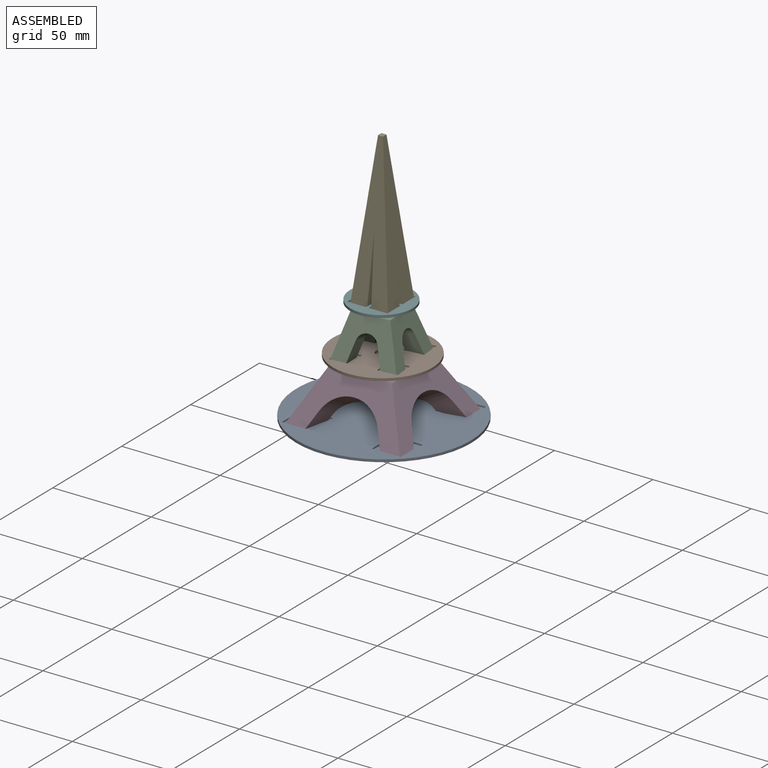
[diagram: assembled view]
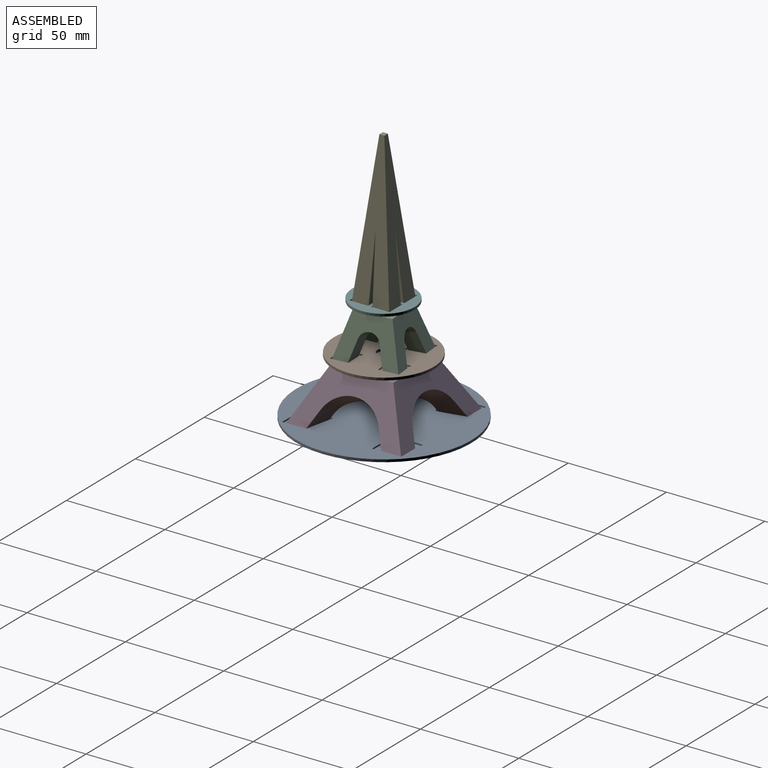
[diagram: assembled view, second angle]
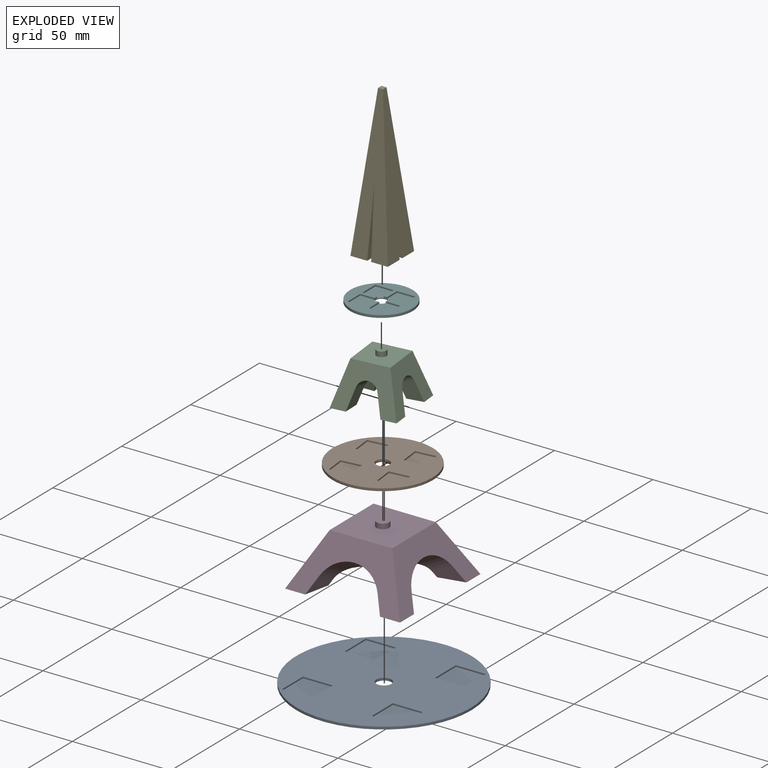
[diagram: exploded view]
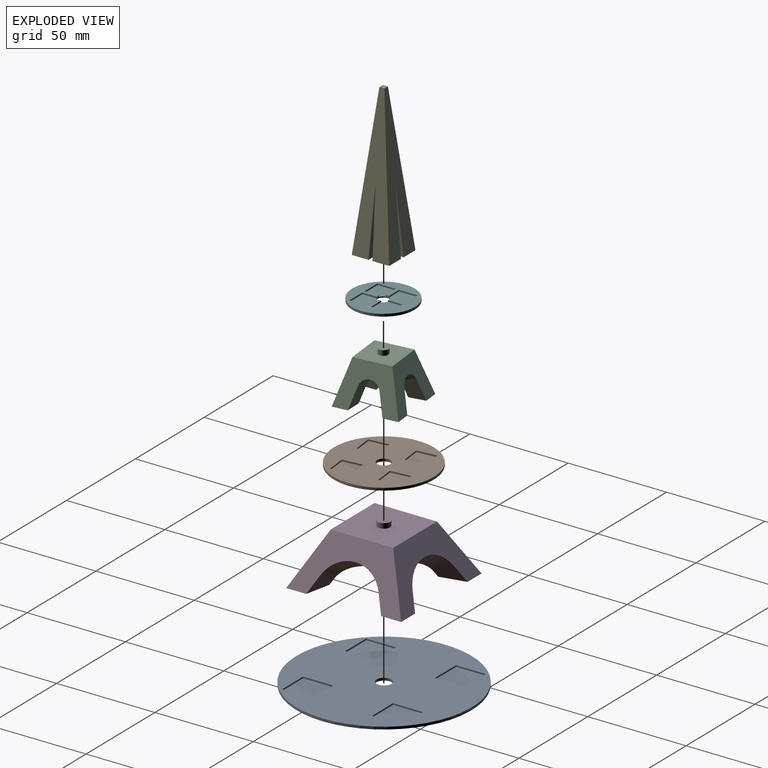
[diagram: exploded view, second angle]
ASSEMBLY  parts=6 mates=5
PART A: 24 faces, bbox 88.9x88.9x1.3 mm
  f0: plane 88.9x88.9mm, normal (0,0,1), area 5232.5mm2, adj f1,f2,f4,f5,f6,f7,f9,f10
  f1: cylinder r=3.81mm len=7.62mm, axis (0,0,1), area 30.4mm2, adj f0,f3
  f2: cylinder r=44.45mm len=88.9mm, axis (0,0,1), area 354.7mm2, adj f0,f3
  f3: plane 88.9x88.9mm, normal (0,0,-1), area 6161.6mm2, adj f1,f2
  f4: plane 15.24x0.76mm, normal (-1,0,0), area 11.6mm2, adj f0,f5,f7,f8
  f5: plane 15.24x0.76mm, normal (0,-1,0), area 11.6mm2, adj f0,f4,f6,f8
  f6: plane 15.24x0.76mm, normal (1,0,0), area 11.6mm2, adj f0,f5,f7,f8
  f7: plane 15.24x0.76mm, normal (0,1,0), area 11.6mm2, adj f0,f4,f6,f8
  f8: plane 15.24x15.24mm, normal (0,0,1), area 232.3mm2, adj f4,f5,f6,f7
  f9: plane 15.24x0.76mm, normal (1,0,0), area 11.6mm2, adj f0,f10,f12,f13
  f10: plane 15.24x0.76mm, normal (0,1,0), area 11.6mm2, adj f0,f9,f11,f13
  f11: plane 15.24x0.76mm, normal (-1,0,0), area 11.6mm2, adj f0,f10,f12,f13
  f12: plane 15.24x0.76mm, normal (0,-1,0), area 11.6mm2, adj f0,f9,f11,f13
  f13: plane 15.24x15.24mm, normal (0,0,1), area 232.3mm2, adj f9,f10,f11,f12
  f14: plane 15.24x0.76mm, normal (1,0,0), area 11.6mm2, adj f0,f15,f17,f18
  f15: plane 15.24x0.76mm, normal (0,1,0), area 11.6mm2, adj f0,f14,f16,f18
  f16: plane 15.24x0.76mm, normal (-1,0,0), area 11.6mm2, adj f0,f15,f17,f18
  f17: plane 15.24x0.76mm, normal (0,-1,0), area 11.6mm2, adj f0,f14,f16,f18
  f18: plane 15.24x15.24mm, normal (0,0,1), area 232.3mm2, adj f14,f15,f16,f17
  f19: plane 15.24x0.76mm, normal (-1,0,0), area 11.6mm2, adj f0,f20,f22,f23
  f20: plane 15.24x0.76mm, normal (0,-1,0), area 11.6mm2, adj f0,f19,f21,f23
  f21: plane 15.24x0.76mm, normal (1,0,0), area 11.6mm2, adj f0,f20,f22,f23
  f22: plane 15.24x0.76mm, normal (0,1,0), area 11.6mm2, adj f0,f19,f21,f23
  f23: plane 15.24x15.24mm, normal (0,0,1), area 232.3mm2, adj f19,f20,f21,f22
PART B: 24 faces, bbox 50.8x50.8x1.3 mm
  f0: plane 50.8x50.8mm, normal (0,0,1), area 1577mm2, adj f1,f3,f4,f5,f6,f8,f9,f10
  f1: cylinder r=25.4mm len=50.8mm, axis (0,0,1), area 202.7mm2, adj f0,f2
  f2: plane 50.8x50.8mm, normal (0,0,-1), area 1989.9mm2, adj f1,f23
  f3: plane 10.16x0.76mm, normal (0,-1,0), area 7.7mm2, adj f0,f4,f6,f7
  f4: plane 10.16x0.76mm, normal (1,0,0), area 7.7mm2, adj f0,f3,f5,f7
  f5: plane 10.16x0.76mm, normal (0,1,0), area 7.7mm2, adj f0,f4,f6,f7
  f6: plane 10.16x0.76mm, normal (-1,0,0), area 7.7mm2, adj f0,f3,f5,f7
  f7: plane 10.16x10.16mm, normal (0,0,1), area 103.2mm2, adj f3,f4,f5,f6
  f8: plane 10.16x0.76mm, normal (0,-1,0), area 7.7mm2, adj f0,f9,f11,f12
  f9: plane 10.16x0.76mm, normal (1,0,0), area 7.7mm2, adj f0,f8,f10,f12
  f10: plane 10.16x0.76mm, normal (0,1,0), area 7.7mm2, adj f0,f9,f11,f12
  f11: plane 10.16x0.76mm, normal (-1,0,0), area 7.7mm2, adj f0,f8,f10,f12
  f12: plane 10.16x10.16mm, normal (0,0,1), area 103.2mm2, adj f8,f9,f10,f11
  f13: plane 10.16x0.76mm, normal (-1,0,0), area 7.7mm2, adj f0,f14,f16,f17
  f14: plane 10.16x0.76mm, normal (0,-1,0), area 7.7mm2, adj f0,f13,f15,f17
  f15: plane 10.16x0.76mm, normal (1,0,0), area 7.7mm2, adj f0,f14,f16,f17
  f16: plane 10.16x0.76mm, normal (0,1,0), area 7.7mm2, adj f0,f13,f15,f17
  f17: plane 10.16x10.16mm, normal (0,0,1), area 103.2mm2, adj f13,f14,f15,f16
  f18: plane 10.16x0.76mm, normal (0,-1,0), area 7.7mm2, adj f0,f19,f21,f22
  f19: plane 10.16x0.76mm, normal (1,0,0), area 7.7mm2, adj f0,f18,f20,f22
  f20: plane 10.16x0.76mm, normal (0,1,0), area 7.7mm2, adj f0,f19,f21,f22
  f21: plane 10.16x0.76mm, normal (-1,0,0), area 7.7mm2, adj f0,f18,f20,f22
  f22: plane 10.16x10.16mm, normal (0,0,1), area 103.2mm2, adj f18,f19,f20,f21
  f23: cylinder r=3.43mm len=6.86mm, axis (0,0,1), area 27.4mm2, adj f0,f2
PART C: 23 faces, bbox 31.8x31.8x24.1 mm
  f0: plane 8.28x8.28mm, normal (0,0,-1), area 63.1mm2, adj f1,f11,f12,f20
  f1: plane 10.72x10.54mm, normal (0.08,-0.96,-0.26), area 81mm2, adj f0,f11,f17,f20
  f2: plane 8.28x8.28mm, normal (0,0,-1), area 63.1mm2, adj f3,f10,f11,f16
  f3: plane 10.72x10.54mm, normal (-0.96,-0.08,-0.26), area 81mm2, adj f2,f10,f14,f16
  f4: plane 8.28x8.28mm, normal (0,0,-1), area 63.1mm2, adj f9,f12,f13,f18
  f5: plane 8.28x8.28mm, normal (0,0,-1), area 63.1mm2, adj f6,f9,f10,f15
  f6: plane 10.72x10.54mm, normal (-0.08,0.96,-0.26), area 81mm2, adj f5,f7,f9,f15
  f7: cylinder r=5.36mm len=12.78mm, axis (-0.96,0,0.28), area 131mm2, adj f6,f9,f13,f14,f19
  f8: plane 19.05x19.05mm, normal (0,0,1), area 342.6mm2, adj f9,f10,f11,f12,f21
  f9: plane 31.75x21.59mm, normal (-0.96,0,0.28), area 394.6mm2, adj f4,f5,f6,f7,f8,f10,f12,f13
  f10: plane 31.75x21.59mm, normal (0,-0.96,0.28), area 394.6mm2, adj f2,f3,f5,f8,f9,f11,f14,f15
  f11: plane 31.75x21.59mm, normal (0.96,0,0.28), area 394.6mm2, adj f0,f1,f2,f8,f10,f12,f16,f17
  f12: plane 31.75x21.59mm, normal (0,0.96,0.28), area 394.6mm2, adj f0,f4,f8,f9,f11,f18,f19,f20
  f13: plane 10.72x10.54mm, normal (-0.08,-0.96,-0.26), area 81mm2, adj f4,f7,f9,f18
  f14: cylinder r=5.36mm len=12.78mm, axis (0,-0.96,0.28), area 131mm2, adj f3,f7,f10,f15,f17
  f15: plane 10.72x10.54mm, normal (0.96,-0.08,-0.26), area 81mm2, adj f5,f6,f10,f14
  f16: plane 10.72x10.54mm, normal (0.08,0.96,-0.26), area 81mm2, adj f2,f3,f11,f17
  f17: cylinder r=5.36mm len=12.78mm, axis (0.96,0,0.28), area 131mm2, adj f1,f11,f14,f16,f19
  f18: plane 10.72x10.54mm, normal (0.96,0.08,-0.26), area 81mm2, adj f4,f12,f13,f19
  f19: cylinder r=5.36mm len=12.78mm, axis (0,0.96,0.28), area 131mm2, adj f7,f12,f17,f18,f20
  f20: plane 10.72x10.54mm, normal (-0.96,0.08,-0.26), area 81mm2, adj f0,f1,f12,f19
  f21: cylinder r=2.54mm len=5.08mm, axis (0,0,-1), area 40.5mm2, adj f8,f22
  f22: plane 5.08x5.08mm, normal (0,0,1), area 20.3mm2, adj f21
PART D: 23 faces, bbox 58.4x58.4x30.7 mm
  f0: plane 12.96x12.96mm, normal (0,0,-1), area 131.7mm2, adj f1,f9,f10,f20
  f1: plane 14.37x8.02mm, normal (-0.2,0.91,-0.37), area 76.6mm2, adj f0,f9,f16,f20
  f2: plane 12.96x12.96mm, normal (0,0,-1), area 131.7mm2, adj f3,f9,f12,f17
  f3: plane 14.37x8.02mm, normal (0.91,0.2,-0.37), area 76.6mm2, adj f2,f12,f14,f17
  f4: plane 12.96x12.96mm, normal (0,0,-1), area 131.7mm2, adj f5,f11,f12,f15
  f5: plane 14.37x8.02mm, normal (0.2,-0.91,-0.37), area 76.6mm2, adj f4,f6,f11,f15
  f6: cylinder r=16.36mm len=29.68mm, axis (0.89,0,0.46), area 579.1mm2, adj f5,f11,f13,f14,f19
  f7: plane 12.96x12.96mm, normal (0,0,-1), area 131.7mm2, adj f10,f11,f13,f18
  f8: plane 31.75x31.75mm, normal (0,0,1), area 976.4mm2, adj f9,f10,f11,f12,f21
  f9: plane 58.42x25.4mm, normal (-0.89,0,0.46), area 784.6mm2, adj f0,f1,f2,f8,f10,f12,f16,f17
  f10: plane 58.42x25.4mm, normal (0,-0.89,0.46), area 784.6mm2, adj f0,f7,f8,f9,f11,f18,f19,f20
  f11: plane 58.42x25.4mm, normal (0.89,0,0.46), area 784.6mm2, adj f4,f5,f6,f7,f8,f10,f12,f13
  f12: plane 58.42x25.4mm, normal (0,0.89,0.46), area 784.6mm2, adj f2,f3,f4,f8,f9,f11,f14,f15
  f13: plane 14.37x8.02mm, normal (0.2,0.91,-0.37), area 76.6mm2, adj f6,f7,f11,f18
  f14: cylinder r=16.36mm len=29.68mm, axis (0,0.89,0.46), area 579.1mm2, adj f3,f6,f12,f15,f16
  f15: plane 14.37x8.02mm, normal (-0.91,0.2,-0.37), area 76.6mm2, adj f4,f5,f12,f14
  f16: cylinder r=16.36mm len=29.68mm, axis (-0.89,0,0.46), area 579.1mm2, adj f1,f9,f14,f17,f19
  f17: plane 14.37x8.02mm, normal (-0.2,-0.91,-0.37), area 76.6mm2, adj f2,f3,f9,f16
  f18: plane 14.37x8.02mm, normal (-0.91,-0.2,-0.37), area 76.6mm2, adj f7,f10,f13,f19
  f19: cylinder r=16.36mm len=29.68mm, axis (0,-0.89,0.46), area 579.1mm2, adj f6,f10,f16,f18,f20
  f20: plane 14.37x8.02mm, normal (0.91,-0.2,-0.37), area 76.6mm2, adj f0,f1,f10,f19
  f21: cylinder r=3.17mm len=6.35mm, axis (0,0,-1), area 50.7mm2, adj f8,f22
  f22: plane 6.35x6.35mm, normal (0,0,1), area 31.7mm2, adj f21
PART E: 25 faces, bbox 19.1x19.1x76.2 mm
  f0: plane 33.87x9.53mm, normal (0,-1,-0.03), area 238.8mm2, adj f7,f8,f9,f15,f21,f22
  f1: plane 8.51x8.51mm, normal (0,0,-1), area 70.5mm2, adj f3,f4,f5,f6,f23
  f2: plane 2.54x2.54mm, normal (0,0,1), area 6.5mm2, adj f3,f6,f9,f11
  f3: plane 76.2x19.05mm, normal (-0.99,0,0.11), area 792.8mm2, adj f1,f2,f4,f6,f10,f11,f13
  f4: plane 33.87x9.53mm, normal (0,-1,-0.03), area 238.8mm2, adj f1,f3,f5,f13,f23,f24
  f5: plane 33.87x9.53mm, normal (1,0,-0.03), area 238.8mm2, adj f1,f4,f6,f8,f23,f24
  f6: plane 76.2x19.05mm, normal (0,0.99,0.11), area 792.8mm2, adj f1,f2,f3,f5,f7,f8,f9
  f7: plane 8.51x8.51mm, normal (0,0,-1), area 70.5mm2, adj f0,f6,f8,f9,f22
  f8: plane 33.87x9.53mm, normal (-1,0,-0.03), area 238.8mm2, adj f0,f5,f6,f7,f21,f22
  f9: plane 76.2x19.05mm, normal (0.99,0,0.11), area 792.8mm2, adj f0,f2,f6,f7,f11,f14,f15
  f10: plane 8.51x8.51mm, normal (0,0,-1), area 70.5mm2, adj f3,f11,f12,f13,f20
  f11: plane 76.2x19.05mm, normal (0,-0.99,0.11), area 792.8mm2, adj f2,f3,f9,f10,f12,f14,f16
  f12: plane 33.87x9.53mm, normal (1,0,-0.03), area 238.8mm2, adj f10,f11,f13,f16,f19,f20
  f13: plane 33.87x9.53mm, normal (0,1,-0.03), area 238.8mm2, adj f3,f4,f10,f12,f19,f20
  f14: plane 8.51x8.51mm, normal (0,0,-1), area 70.5mm2, adj f9,f11,f15,f16,f18
  f15: plane 33.87x9.53mm, normal (0,1,-0.03), area 238.8mm2, adj f0,f9,f14,f16,f17,f18
  f16: plane 33.87x9.53mm, normal (-1,0,-0.03), area 238.8mm2, adj f11,f12,f14,f15,f17,f18
  f17: plane 1.83x1.83mm, normal (0,0,-1), area 2.2mm2, adj f15,f16,f18
  f18: cylinder r=2.92mm len=2.54mm, axis (0,0,-1), area 6.6mm2, adj f14,f15,f16,f17
  f19: plane 1.83x1.83mm, normal (0,0,-1), area 2.2mm2, adj f12,f13,f20
  f20: cylinder r=2.92mm len=2.54mm, axis (0,0,-1), area 6.6mm2, adj f10,f12,f13,f19
  f21: plane 1.83x1.83mm, normal (0,0,-1), area 2.2mm2, adj f0,f8,f22
  f22: cylinder r=2.92mm len=2.54mm, axis (0,0,-1), area 6.6mm2, adj f0,f7,f8,f21
  f23: cylinder r=2.92mm len=2.54mm, axis (0,0,-1), area 6.6mm2, adj f1,f4,f5,f24
  f24: plane 1.83x1.83mm, normal (0,0,-1), area 2.2mm2, adj f4,f5,f23
PART F: 24 faces, bbox 31.8x31.8x1.3 mm
  f0: plane 31.75x31.75mm, normal (0,0,1), area 426.9mm2, adj f1,f3,f4,f5,f6,f8,f9,f10
  f1: cylinder r=15.88mm len=31.75mm, axis (0,0,1), area 126.7mm2, adj f0,f2
  f2: plane 31.75x31.75mm, normal (0,0,-1), area 764.9mm2, adj f1,f23
  f3: plane 7.36x0.76mm, normal (1,0,0), area 5.6mm2, adj f0,f6,f7,f23
  f4: plane 7.36x0.76mm, normal (0,1,0), area 5.6mm2, adj f0,f5,f7,f23
  f5: plane 9.33x0.76mm, normal (-1,0,0), area 7.1mm2, adj f0,f4,f6,f7
  f6: plane 9.33x0.76mm, normal (0,-1,0), area 7.1mm2, adj f0,f3,f5,f7
  f7: plane 9.33x9.33mm, normal (0,0,1), area 84.5mm2, adj f3,f4,f5,f6,f23
  f8: plane 7.36x0.76mm, normal (-1,0,0), area 5.6mm2, adj f0,f11,f12,f23
  f9: plane 7.36x0.76mm, normal (0,-1,0), area 5.6mm2, adj f0,f10,f12,f23
  f10: plane 9.33x0.76mm, normal (1,0,0), area 7.1mm2, adj f0,f9,f11,f12
  f11: plane 9.33x0.76mm, normal (0,1,0), area 7.1mm2, adj f0,f8,f10,f12
  f12: plane 9.33x9.33mm, normal (0,0,1), area 84.5mm2, adj f8,f9,f10,f11,f23
  f13: plane 9.33x0.76mm, normal (-1,0,0), area 7.1mm2, adj f0,f14,f16,f17
  f14: plane 7.36x0.76mm, normal (0,-1,0), area 5.6mm2, adj f0,f13,f17,f23
  f15: plane 7.36x0.76mm, normal (1,0,0), area 5.6mm2, adj f0,f16,f17,f23
  f16: plane 9.33x0.76mm, normal (0,1,0), area 7.1mm2, adj f0,f13,f15,f17
  f17: plane 9.33x9.33mm, normal (0,0,1), area 84.5mm2, adj f13,f14,f15,f16,f23
  f18: plane 7.36x0.76mm, normal (-1,0,0), area 5.6mm2, adj f0,f19,f22,f23
  f19: plane 9.33x0.76mm, normal (0,-1,0), area 7.1mm2, adj f0,f18,f20,f22
  f20: plane 9.33x0.76mm, normal (1,0,0), area 7.1mm2, adj f0,f19,f21,f22
  f21: plane 7.36x0.76mm, normal (0,1,0), area 5.6mm2, adj f0,f20,f22,f23
  f22: plane 9.33x9.33mm, normal (0,0,1), area 84.5mm2, adj f18,f19,f20,f21,f23
  f23: cylinder r=2.92mm len=5.84mm, axis (0,0,-1), area 14.4mm2, adj f0,f2,f3,f4,f7,f8,f9,f12
PLACE A t=(-172.6,15.67,16.43)mm fixed
PLACE B rot(axis=(0,0,1),6.2deg) t=(-172.94,15.33,44.87)mm
PLACE C rot(axis=(0,0,1),6.2deg) t=(-173.31,14.87,44.11)mm
PLACE D t=(-172.94,15.33,15.66)mm
PLACE E t=(-173.06,15.12,68.75)mm
PLACE F t=(-173.31,14.87,69.51)mm
MATE revolute D.f21 <-> B.f1  axis (0,0,1) through (-172.94,15.33,43.6)mm
MATE revolute C.f21 <-> F.f1  axis (0,0,1) through (-173.31,14.87,68.24)mm
MATE fastened D.f4 <-> A.f13  axis (0,0,-1) through (-149.74,38.53,15.66)mm
MATE fastened F.f7 <-> E.f7  axis (0,0,1) through (-167.69,20.49,68.75)mm
MATE fastened B.f7 <-> C.f0  axis (0,0,1) through (-162.8,27.92,44.11)mm
